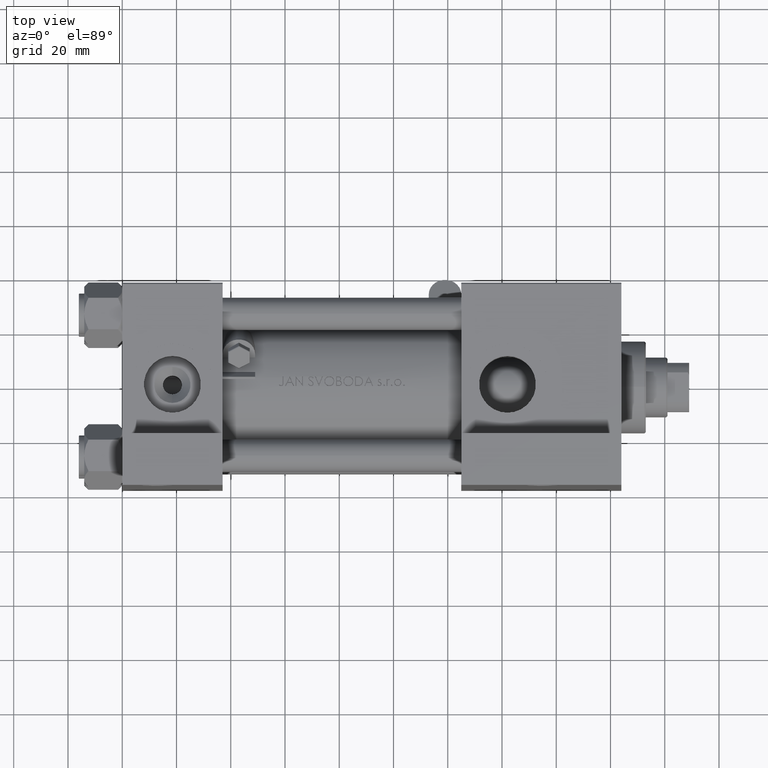
[diagram: clean part render]
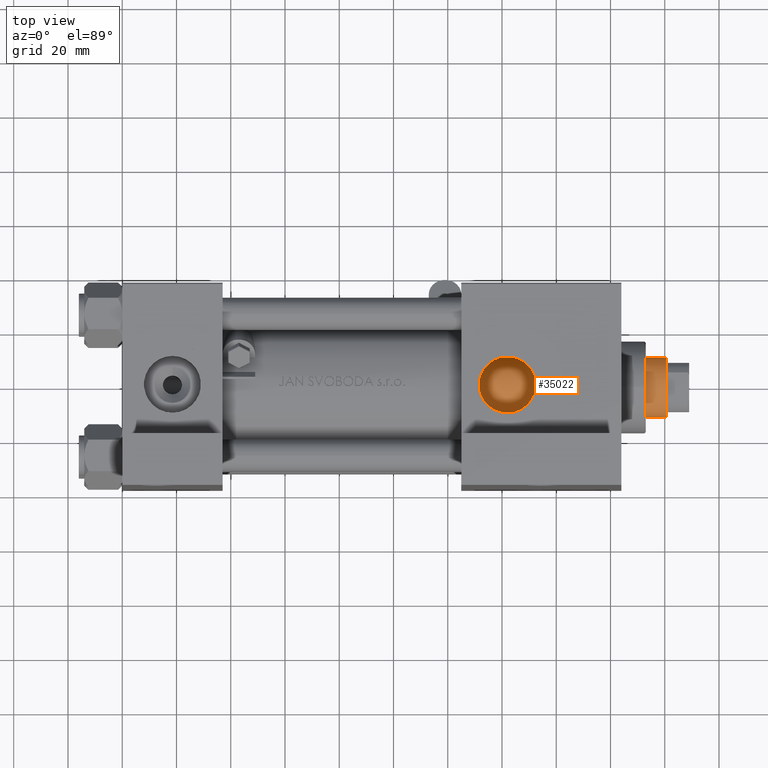
[diagram: same view with one face highlighted and labeled with its STEP entity id]
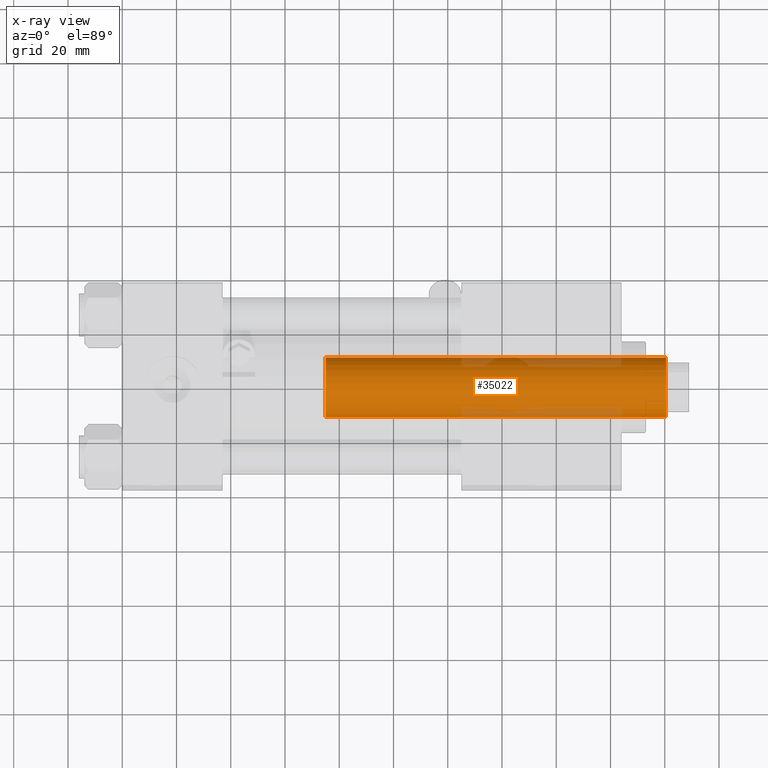
[diagram: x-ray of the same camera — body ghosted, the highlighted face saturated]
A machine part, top view. The second image highlights one B-rep face of the part: STEP entity #35022.
The next image is the same camera in x-ray: the body ghosted, the highlighted face saturated — about 13% of this face is hidden behind the body in this view.
In plain terms, the highlighted cylindrical surface (edge-blend (fillet) strip) has radius 11 mm, axis along (-1, 0, 0).
Its self-contained STEP definition (entity closure, byte-faithful):
#1446 = AXIS2_PLACEMENT_3D ( 'NONE', #45862, #22770, #23248 ) ;
#2757 = VECTOR ( 'NONE', #44060, 1000.000000000000000 ) ;
#2768 = CARTESIAN_POINT ( 'NONE',  ( -11.00000000000000000, 0.000000000000000000, 164.0000000000000000 ) ) ;
#3883 = DIRECTION ( 'NONE',  ( 0.000000000000000000, 0.000000000000000000, -1.000000000000000000 ) ) ;
#6480 = CARTESIAN_POINT ( 'NONE',  ( 0.000000000000000000, 0.000000000000000000, 38.00000000000000000 ) ) ;
#8310 = EDGE_LOOP ( 'NONE', ( #28188, #22505, #33550, #36614 ) ) ;
#9068 = VERTEX_POINT ( 'NONE', #38411 ) ;
#9454 = DIRECTION ( 'NONE',  ( 0.000000000000000000, 0.000000000000000000, 1.000000000000000000 ) ) ;
#10974 = CARTESIAN_POINT ( 'NONE',  ( 11.00000000000000000, 1.347111479062088405E-15, 38.00000000000000000 ) ) ;
#14581 = LINE ( 'NONE', #2768, #2757 ) ;
#15395 = CYLINDRICAL_SURFACE ( 'NONE', #1446, 11.00000000000000000 ) ;
#16398 = VERTEX_POINT ( 'NONE', #10974 ) ;
#16790 = AXIS2_PLACEMENT_3D ( 'NONE', #6480, #9454, #47055 ) ;
#18325 = DIRECTION ( 'NONE',  ( -0.000000000000000000, -0.000000000000000000, -1.000000000000000000 ) ) ;
#18888 = DIRECTION ( 'NONE',  ( 1.000000000000000000, 0.000000000000000000, 0.000000000000000000 ) ) ;
#22505 = ORIENTED_EDGE ( 'NONE', *, *, #33077, .T. ) ;
#22568 = CARTESIAN_POINT ( 'NONE',  ( 0.000000000000000000, 0.000000000000000000, 163.5000000000000284 ) ) ;
#22770 = DIRECTION ( 'NONE',  ( -0.000000000000000000, -0.000000000000000000, -1.000000000000000000 ) ) ;
#23248 = DIRECTION ( 'NONE',  ( -1.000000000000000000, 0.000000000000000000, 0.000000000000000000 ) ) ;
#27742 = VERTEX_POINT ( 'NONE', #42834 ) ;
#28188 = ORIENTED_EDGE ( 'NONE', *, *, #40239, .F. ) ;
#29152 = LINE ( 'NONE', #37241, #31415 ) ;
#30123 = CIRCLE ( 'NONE', #16790, 11.00000000000000000 ) ;
#31211 = CIRCLE ( 'NONE', #43763, 11.00000000000000000 ) ;
#31415 = VECTOR ( 'NONE', #18325, 1000.000000000000000 ) ;
#33077 = EDGE_CURVE ( 'NONE', #9068, #27742, #31211, .T. ) ;
#33550 = ORIENTED_EDGE ( 'NONE', *, *, #48595, .T. ) ;
#35022 = ADVANCED_FACE ( 'NONE', ( #48602 ), #15395, .T. ) ;
#36614 = ORIENTED_EDGE ( 'NONE', *, *, #45295, .T. ) ;
#37241 = CARTESIAN_POINT ( 'NONE',  ( 11.00000000000000000, 1.347111479062088405E-15, 164.0000000000000000 ) ) ;
#38411 = CARTESIAN_POINT ( 'NONE',  ( 11.00000000000000000, 1.347111479062088405E-15, 163.5000000000000284 ) ) ;
#40239 = EDGE_CURVE ( 'NONE', #9068, #16398, #29152, .T. ) ;
#40902 = CARTESIAN_POINT ( 'NONE',  ( -11.00000000000000000, 0.000000000000000000, 38.00000000000000000 ) ) ;
#42138 = VERTEX_POINT ( 'NONE', #40902 ) ;
#42834 = CARTESIAN_POINT ( 'NONE',  ( -11.00000000000000000, 0.000000000000000000, 163.5000000000000284 ) ) ;
#43763 = AXIS2_PLACEMENT_3D ( 'NONE', #22568, #3883, #18888 ) ;
#44060 = DIRECTION ( 'NONE',  ( -0.000000000000000000, -0.000000000000000000, -1.000000000000000000 ) ) ;
#45295 = EDGE_CURVE ( 'NONE', #42138, #16398, #30123, .T. ) ;
#45862 = CARTESIAN_POINT ( 'NONE',  ( 0.000000000000000000, 0.000000000000000000, 164.0000000000000000 ) ) ;
#47055 = DIRECTION ( 'NONE',  ( 1.000000000000000000, 0.000000000000000000, 0.000000000000000000 ) ) ;
#48595 = EDGE_CURVE ( 'NONE', #27742, #42138, #14581, .T. ) ;
#48602 = FACE_OUTER_BOUND ( 'NONE', #8310, .T. ) ;